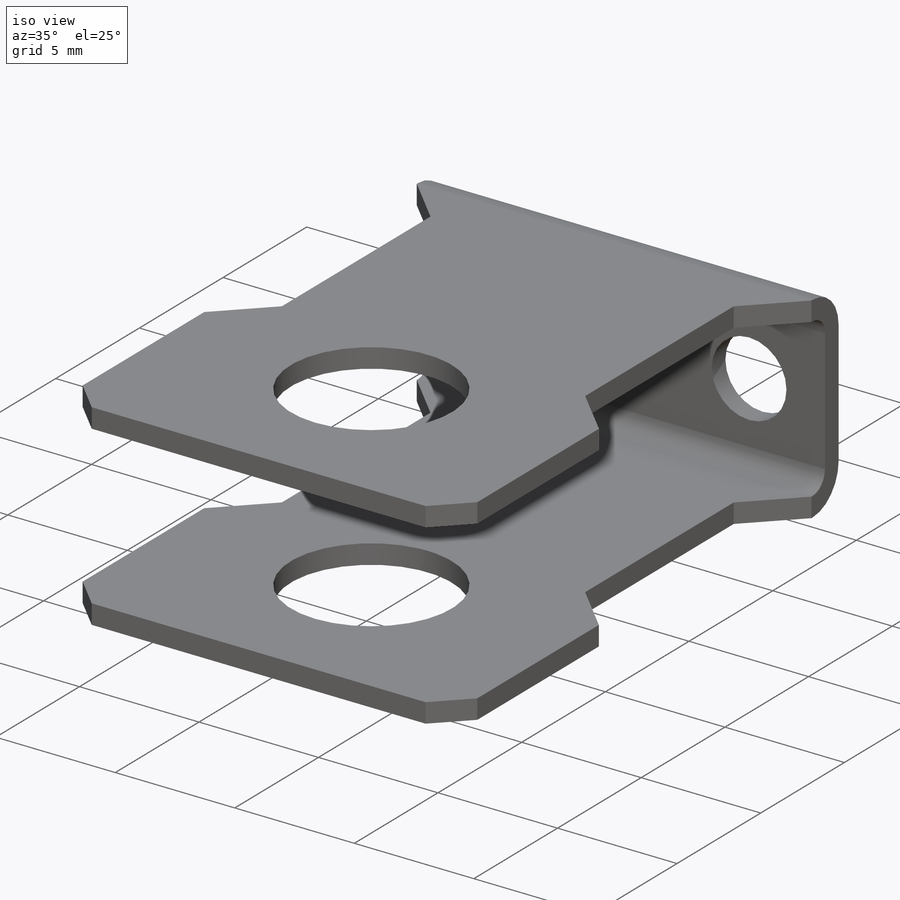
[diagram: iso view]
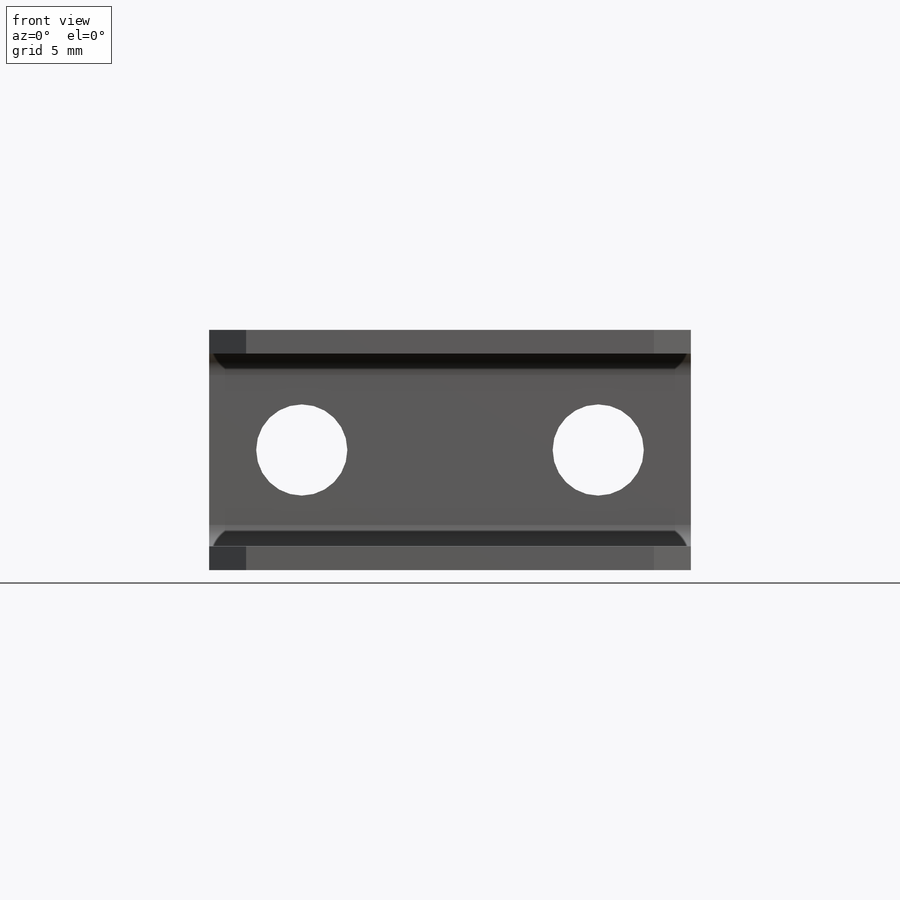
[diagram: front view]
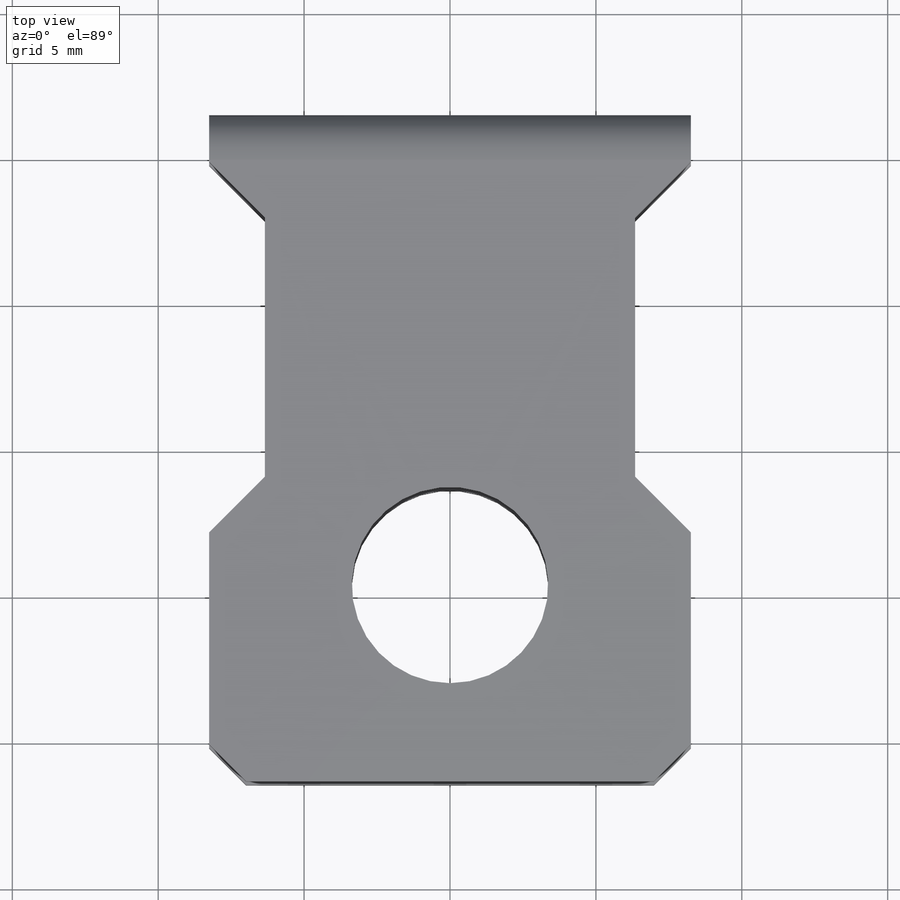
[diagram: top view]
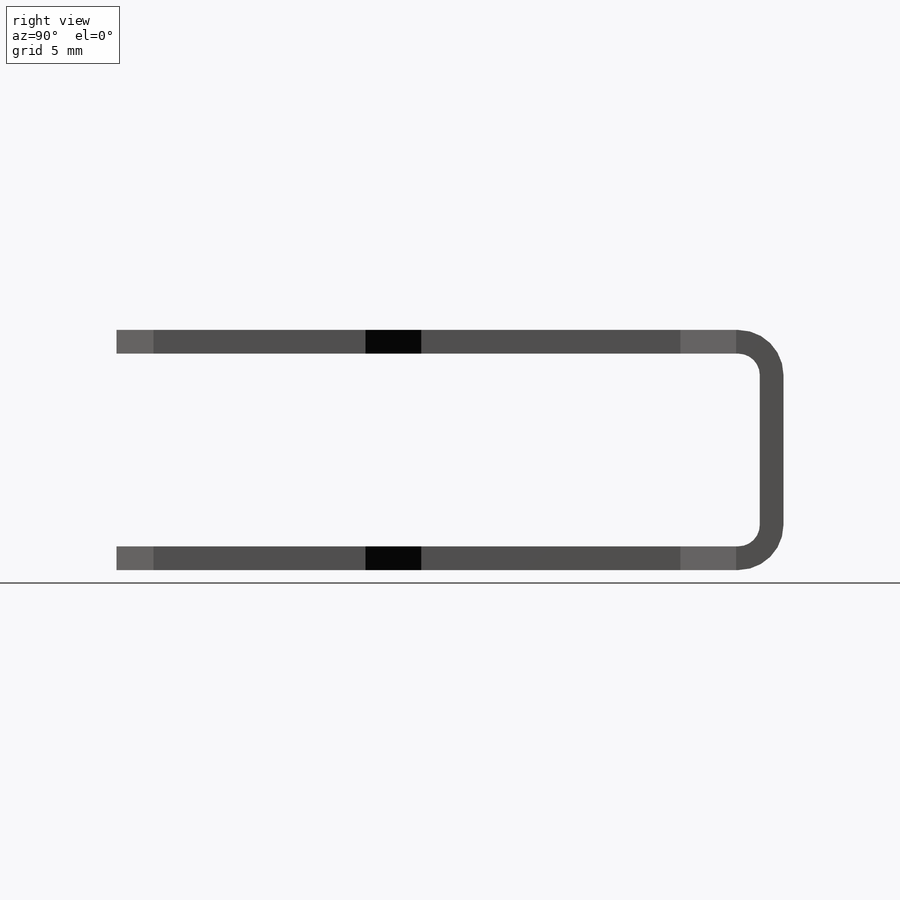
[diagram: right view]
SOLIDWORKS PART (.sldprt)
format: sldprt  version: not decoded by parser v0  size: 564,736 bytes
history: native  units: mm
features: sketch x8, cut_extrude x4, material x1, extrude x1, chamfer x1, mirror x1, sheet_metal_op x1 + 2 further entries (+16 scaffold rows collapsed; 1 parser-record rows omitted)
feature tree (36):
  scaffold x16  (default folders/planes/origin — collapsed)
  material  "Material <not specified>"
  sketch  "Sketch1"  dims[D1=22.86mm D2=16.51mm]
  extrude  "Boss-Extrude1"  Depth=8.2296mm
  sketch  "Sketch3"  dims[c1.D1=0.8128mm c1.D2=0.8128mm c2.D1=0.8128mm c2.D2=0.8128mm c2.D3=0.8128mm]
  cut_extrude  "Cut-Extrude1"  [1 undecoded]
  sketch  "Sketch4"  dims[D1=6.731mm D2=6.731mm]
  cut_extrude  "Cut-Extrude2"  [1 undecoded]
  sketch  "Sketch5"  dims[D1=3.1242mm D3=3.1242mm D2=5.08mm D4=5.08mm D5=3.81mm]
  cut_extrude  "Cut-Extrude3"  [1 undecoded]
  chamfer  "Chamfer7"  Distance=1.27mm Angle=45deg
  sketch  "Sketch12"  dims[c1.D1=~1.966547mm c2.D1=135.0deg c2.D2=~9.037318mm c3.D2=135.0deg c3.D3=1.6256mm c3.D4=12.7mm]
  cut_extrude  "Cut-Extrude4"  [1 undecoded]
  mirror  "Mirror1"
  sheet_metal_op  "Sheet-Metal3"  Thickness=0.8128mm
  sketch  "Sharp-Sketch3"  dims[c1.SharpBend5=0.0 c1.D1=0.0mm c1.D4=90.0deg c1.D5=2.0 c1.D8=0.4064mm c1.D9=0.4064mm c2.D1=0.0mm]
  sketch  "Flat-Sketch3"  dims[D1=0.0mm]
  "Flat-Pattern3"
  sketch  "Bend-Lines3"
  "Flatten-<SharpBend6>1"
  parser-record x1  (decoder bookkeeping rows leaked as tree rows — omitted from the tree; the rows remain in map.json)
decode coverage: 10 of 16 modeling features carry decoded parameters; 2 rows unclassified (native names shown)
note: ~ marks probable driven/reference dimensions
note: 4 parameter values undecoded
summary: no parameter record found for 4 features
note: suppression state not decoded; provenance and decode notes live in map.json
